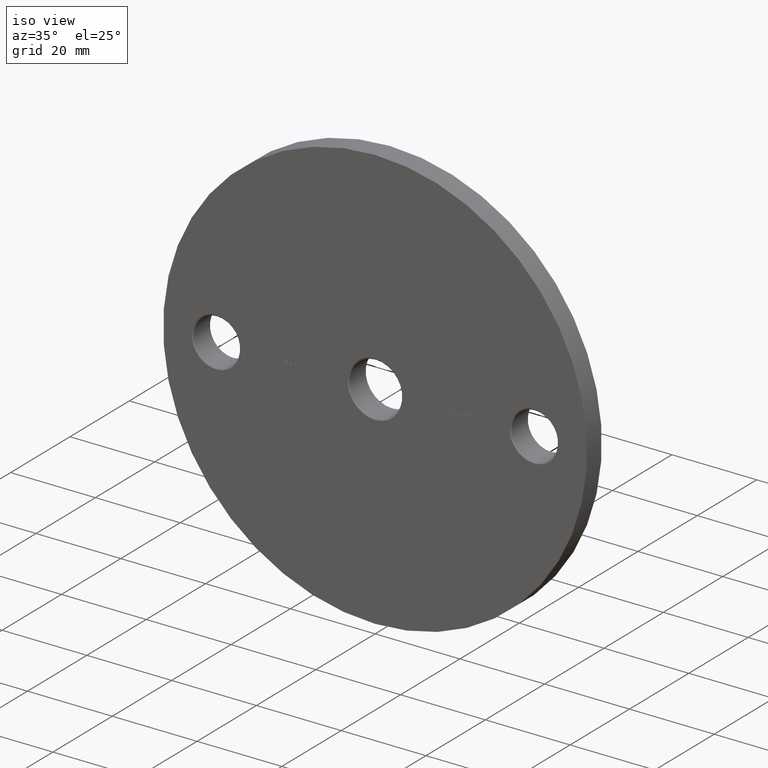
[diagram: clean part render]
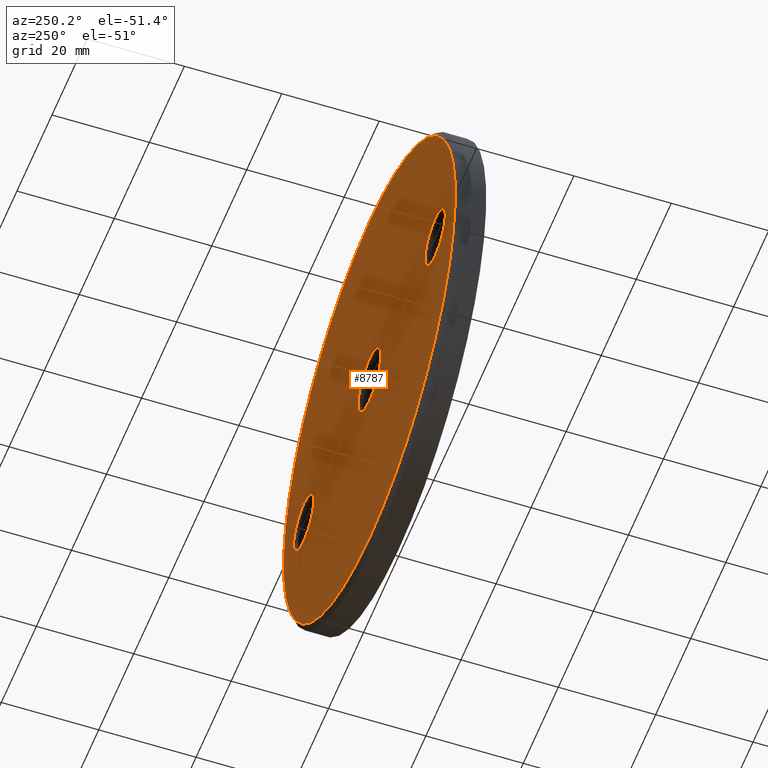
[diagram: tour spotlight — one face highlighted and labeled with its STEP entity id]
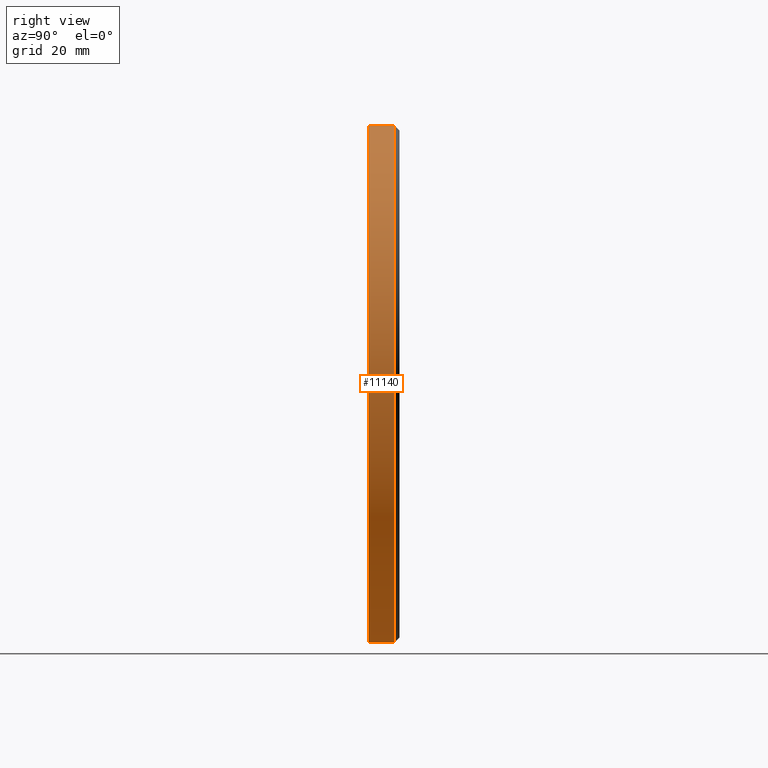
[diagram: tour spotlight — one face highlighted and labeled with its STEP entity id]
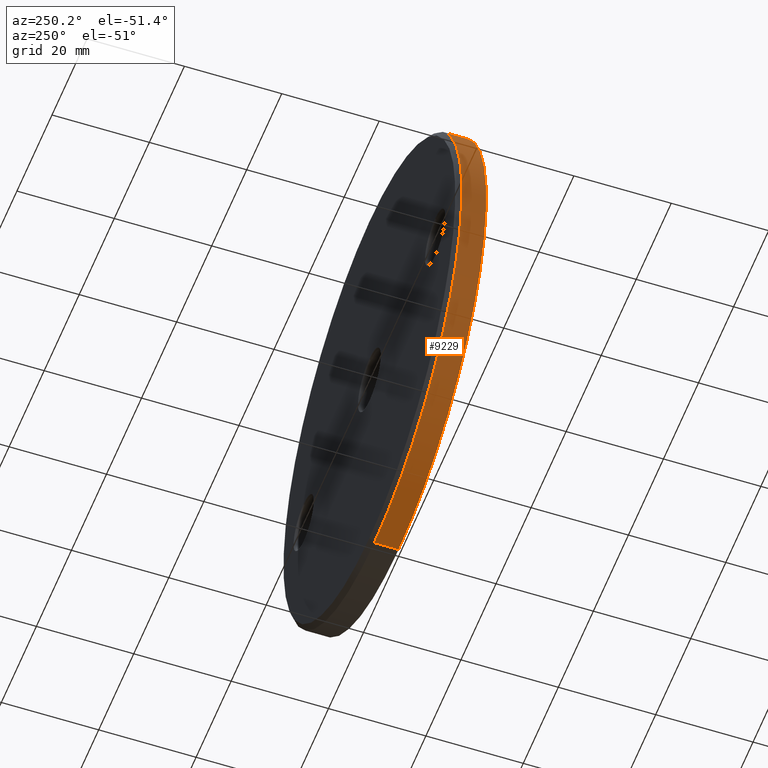
[diagram: tour spotlight — one face highlighted and labeled with its STEP entity id]
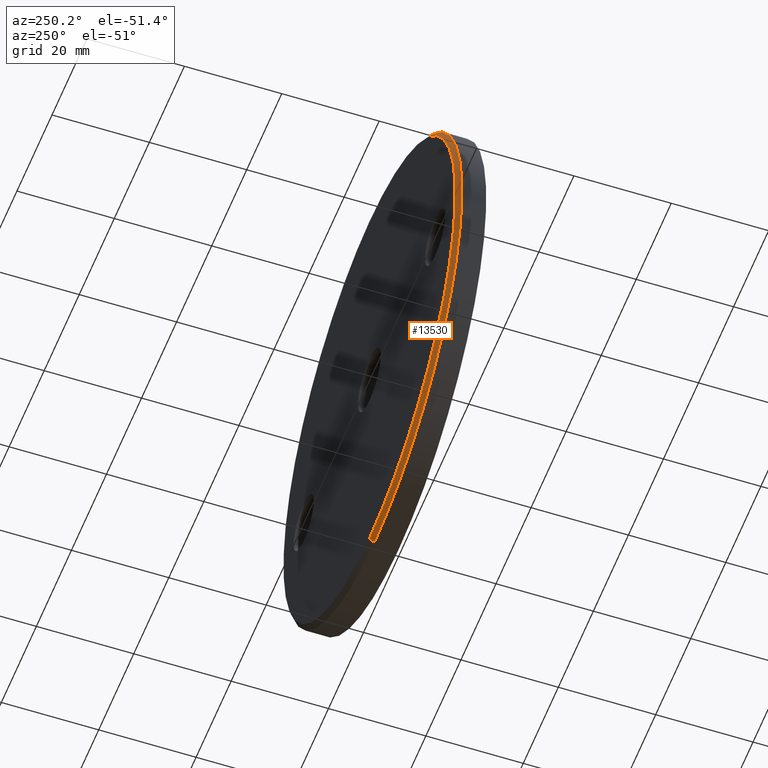
[diagram: tour spotlight — one face highlighted and labeled with its STEP entity id]
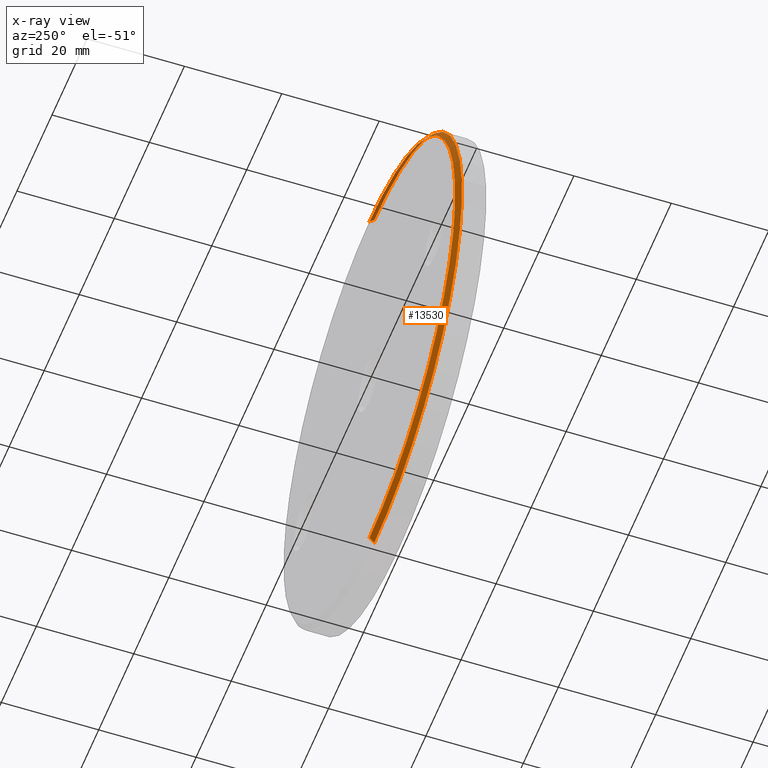
[diagram: x-ray of the same camera — body ghosted, this tour face saturated]
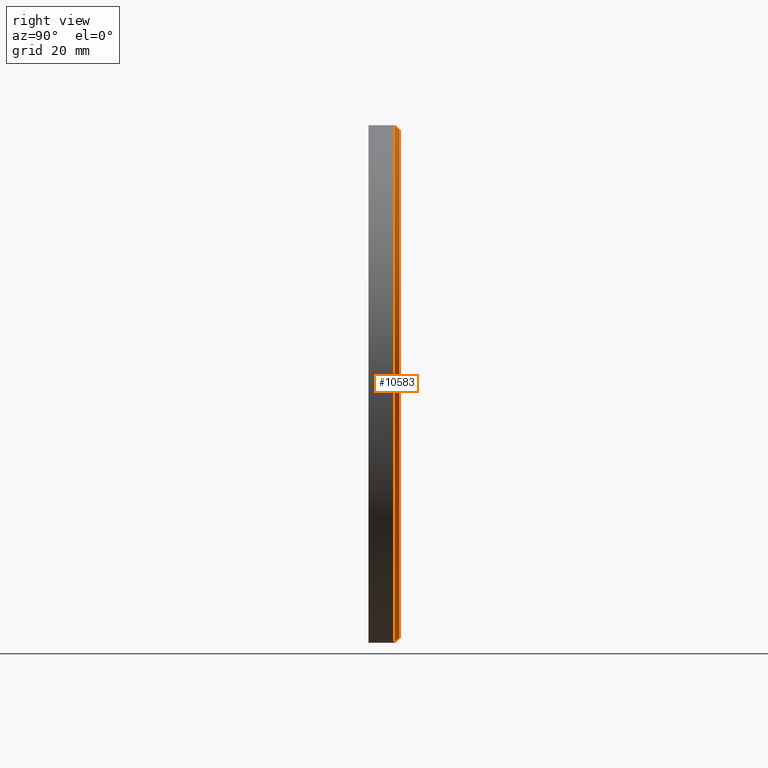
[diagram: tour spotlight — one face highlighted and labeled with its STEP entity id]
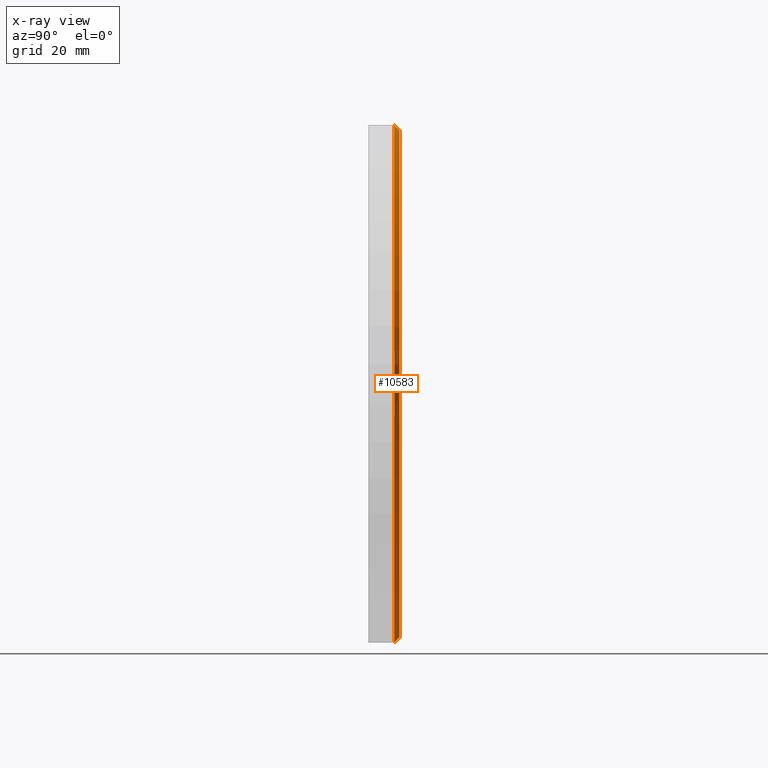
[diagram: x-ray of the same camera — body ghosted, this tour face saturated]
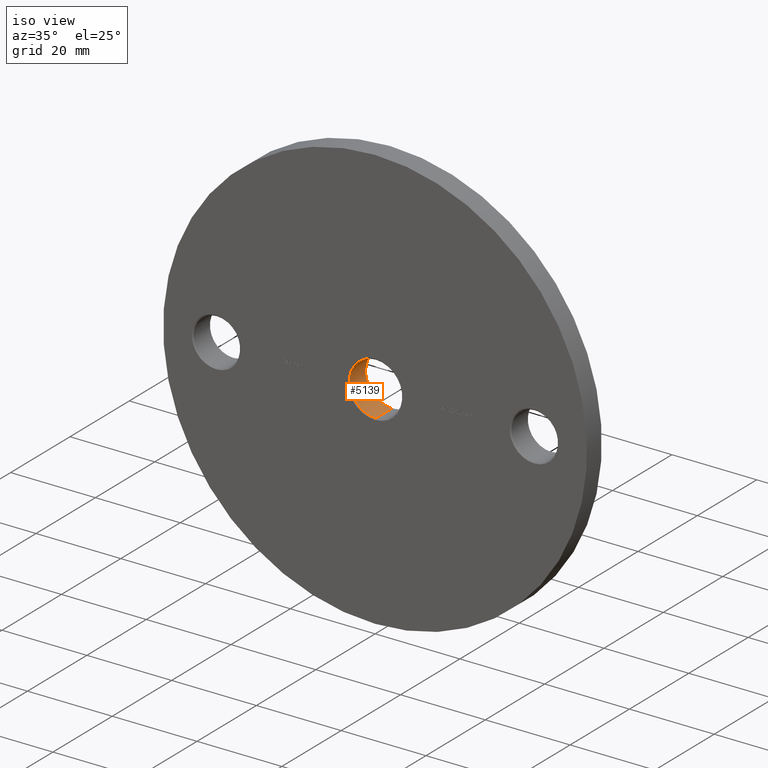
[diagram: tour spotlight — one face highlighted and labeled with its STEP entity id]
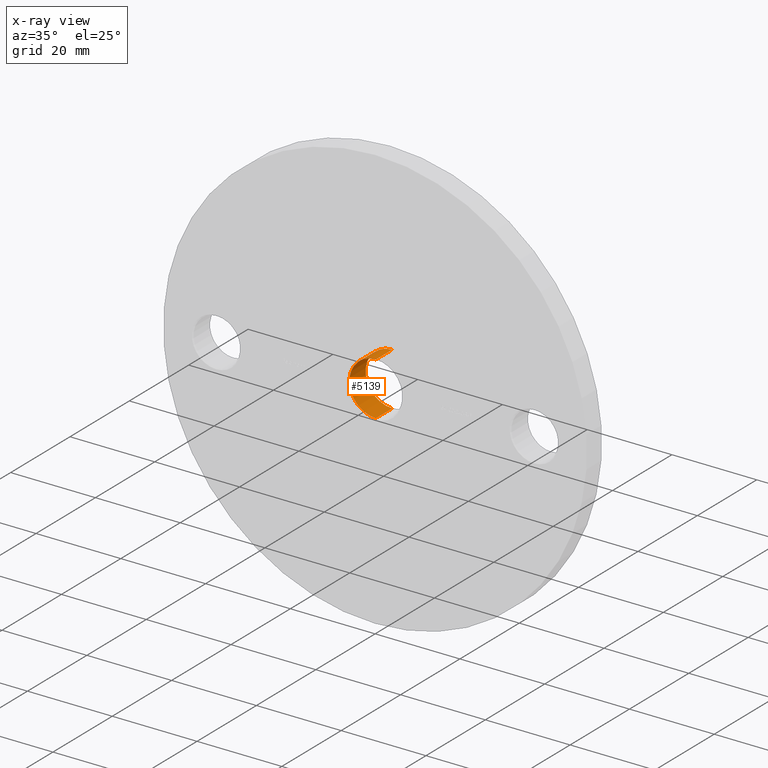
[diagram: x-ray of the same camera — body ghosted, this tour face saturated]
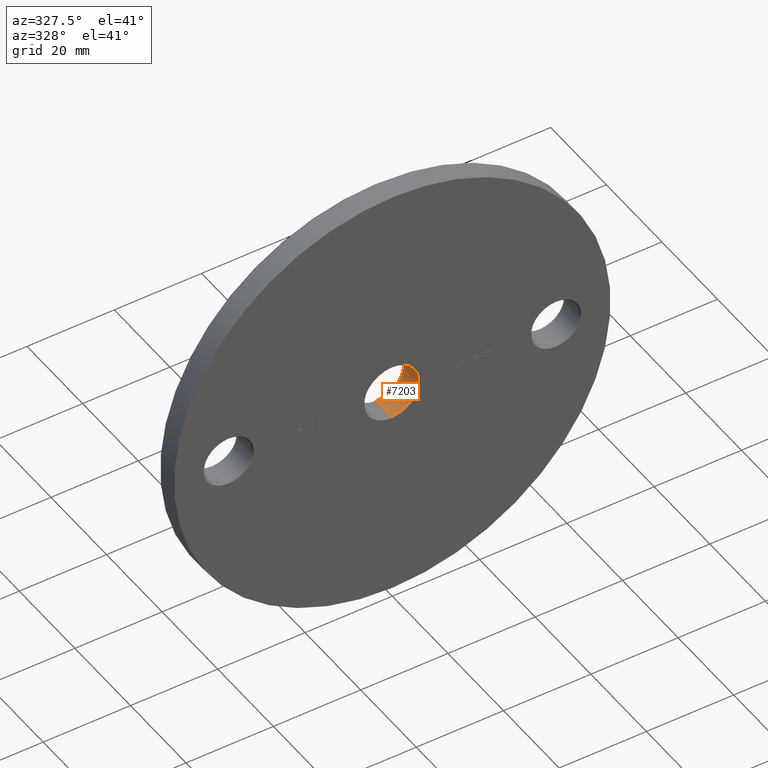
[diagram: tour spotlight — one face highlighted and labeled with its STEP entity id]
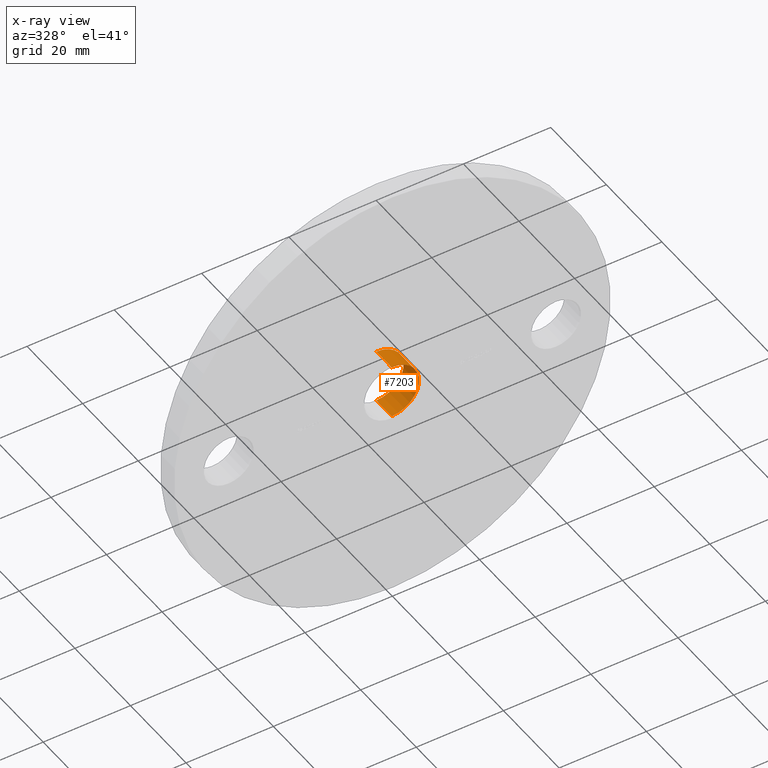
[diagram: x-ray of the same camera — body ghosted, this tour face saturated]
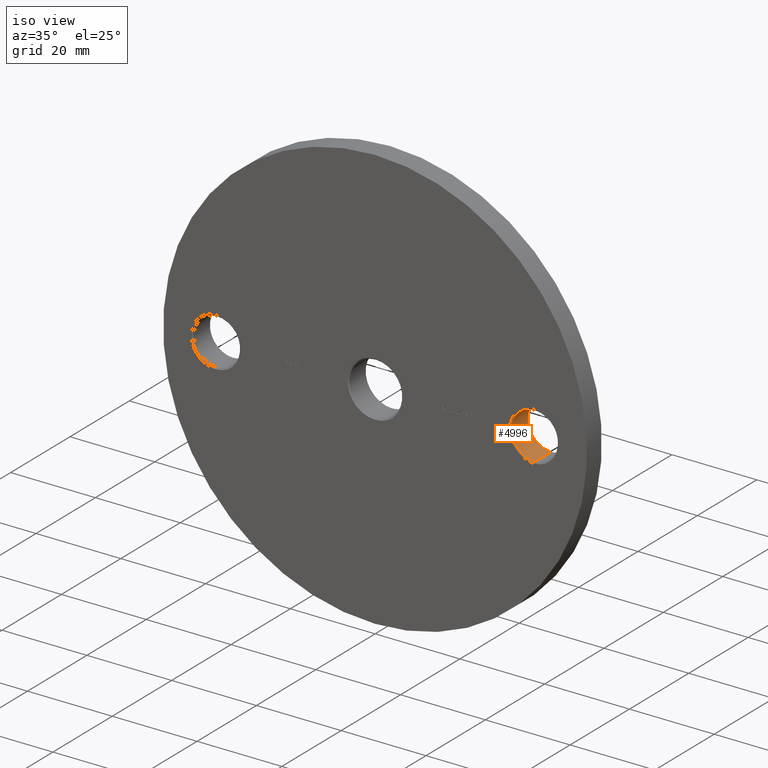
[diagram: tour spotlight — one face highlighted and labeled with its STEP entity id]
A machine part: a face-by-face anatomy tour. The part has 279 B-rep faces; the first image is the clean iso view, then the 8 largest visible faces are spotlighted one at a time (largest first), each with its STEP entity span.

Face 1 — auxiliary view, entity #8787. In plain terms, the highlighted planar face has unit normal (0, 1, 0).
Definition (entity closure, byte-faithful):
#220 = CARTESIAN_POINT ( 'NONE',  ( 0.000000000000000000, 6.000000000000000000, 0.000000000000000000 ) ) ;
#357 = DIRECTION ( 'NONE',  ( 0.000000000000000000, 0.000000000000000000, 1.000000000000000000 ) ) ;
#483 = ORIENTED_EDGE ( 'NONE', *, *, #8444, .T. ) ;
#810 = FACE_BOUND ( 'NONE', #10752, .T. ) ;
#815 = VERTEX_POINT ( 'NONE', #5537 ) ;
#968 = DIRECTION ( 'NONE',  ( -0.000000000000000000, -1.000000000000000000, -0.000000000000000000 ) ) ;
#1272 = ORIENTED_EDGE ( 'NONE', *, *, #5697, .T. ) ;
#1326 = VERTEX_POINT ( 'NONE', #10110 ) ;
#1535 = AXIS2_PLACEMENT_3D ( 'NONE', #2444, #4711, #357 ) ;
#1577 = CARTESIAN_POINT ( 'NONE',  ( 0.000000000000000000, 6.000000000000000000, -49.00000000000002132 ) ) ;
#2024 = CARTESIAN_POINT ( 'NONE',  ( 37.50000000000000000, 6.000000000000000000, -9.184850993605148733E-15 ) ) ;
#2061 = DIRECTION ( 'NONE',  ( 0.000000000000000000, 0.000000000000000000, 1.000000000000000000 ) ) ;
#2141 = CARTESIAN_POINT ( 'NONE',  ( -37.50000000000000000, 6.000000000000000000, 5.750000000000018652 ) ) ;
#2170 = EDGE_CURVE ( 'NONE', #2639, #13078, #12684, .T. ) ;
#2192 = ORIENTED_EDGE ( 'NONE', *, *, #2170, .T. ) ;
#2444 = CARTESIAN_POINT ( 'NONE',  ( 37.50000000000000000, 6.000000000000000000, -9.184850993605148733E-15 ) ) ;
#2445 = DIRECTION ( 'NONE',  ( -0.000000000000000000, -1.000000000000000000, -0.000000000000000000 ) ) ;
#2526 = ORIENTED_EDGE ( 'NONE', *, *, #9350, .T. ) ;
#2639 = VERTEX_POINT ( 'NONE', #5425 ) ;
#3507 = CIRCLE ( 'NONE', #6688, 49.00000000000002132 ) ;
#3653 = AXIS2_PLACEMENT_3D ( 'NONE', #11088, #9849, #13285 ) ;
#3829 = CARTESIAN_POINT ( 'NONE',  ( 37.50000000000000000, 6.000000000000000000, 5.750000000000009770 ) ) ;
#4367 = CARTESIAN_POINT ( 'NONE',  ( 0.000000000000000000, 6.000000000000000000, 0.000000000000000000 ) ) ;
#4574 = DIRECTION ( 'NONE',  ( 0.000000000000000000, 1.000000000000000000, 0.000000000000000000 ) ) ;
#4681 = AXIS2_PLACEMENT_3D ( 'NONE', #13376, #13520, #6814 ) ;
#4711 = DIRECTION ( 'NONE',  ( -0.000000000000000000, -1.000000000000000000, -0.000000000000000000 ) ) ;
#5324 = CIRCLE ( 'NONE', #6576, 5.750000000000018652 ) ;
#5391 = DIRECTION ( 'NONE',  ( 0.000000000000000000, 0.000000000000000000, 1.000000000000000000 ) ) ;
#5425 = CARTESIAN_POINT ( 'NONE',  ( 37.50000000000000000, 6.000000000000000000, -5.750000000000028422 ) ) ;
#5464 = DIRECTION ( 'NONE',  ( -0.000000000000000000, -1.000000000000000000, -0.000000000000000000 ) ) ;
#5537 = CARTESIAN_POINT ( 'NONE',  ( 0.000000000000000000, 6.000000000000000000, 6.500000000000019540 ) ) ;
#5661 = CARTESIAN_POINT ( 'NONE',  ( 0.000000000000000000, 6.000000000000000000, 0.000000000000000000 ) ) ;
#5697 = EDGE_CURVE ( 'NONE', #8298, #9185, #5324, .T. ) ;
#5731 = ORIENTED_EDGE ( 'NONE', *, *, #12938, .T. ) ;
#5757 = ORIENTED_EDGE ( 'NONE', *, *, #11318, .T. ) ;
#5864 = PLANE ( 'NONE',  #4681 ) ;
#6576 = AXIS2_PLACEMENT_3D ( 'NONE', #10014, #8782, #8931 ) ;
#6639 = DIRECTION ( 'NONE',  ( 0.000000000000000000, 0.000000000000000000, 1.000000000000000000 ) ) ;
#6688 = AXIS2_PLACEMENT_3D ( 'NONE', #4367, #4574, #8900 ) ;
#6810 = DIRECTION ( 'NONE',  ( 0.000000000000000000, 0.000000000000000000, 1.000000000000000000 ) ) ;
#6814 = DIRECTION ( 'NONE',  ( 0.000000000000000000, -0.000000000000000000, 1.000000000000000000 ) ) ;
#6879 = AXIS2_PLACEMENT_3D ( 'NONE', #220, #2445, #6810 ) ;
#7058 = AXIS2_PLACEMENT_3D ( 'NONE', #2024, #9649, #5391 ) ;
#8037 = EDGE_LOOP ( 'NONE', ( #2526, #483 ) ) ;
#8171 = FACE_BOUND ( 'NONE', #8037, .T. ) ;
#8298 = VERTEX_POINT ( 'NONE', #2141 ) ;
#8444 = EDGE_CURVE ( 'NONE', #11776, #815, #10214, .T. ) ;
#8525 = ORIENTED_EDGE ( 'NONE', *, *, #10091, .T. ) ;
#8573 = EDGE_LOOP ( 'NONE', ( #8525, #5757 ) ) ;
#8723 = CIRCLE ( 'NONE', #10712, 5.750000000000018652 ) ;
#8782 = DIRECTION ( 'NONE',  ( -0.000000000000000000, -1.000000000000000000, -0.000000000000000000 ) ) ;
#8787 = ADVANCED_FACE ( 'NONE', ( #11241, #8171, #11396, #810 ), #5864, .T. ) ;
#8900 = DIRECTION ( 'NONE',  ( 0.000000000000000000, 0.000000000000000000, 1.000000000000000000 ) ) ;
#8931 = DIRECTION ( 'NONE',  ( 0.000000000000000000, 0.000000000000000000, 1.000000000000000000 ) ) ;
#9185 = VERTEX_POINT ( 'NONE', #13824 ) ;
#9350 = EDGE_CURVE ( 'NONE', #815, #11776, #12589, .T. ) ;
#9371 = AXIS2_PLACEMENT_3D ( 'NONE', #5661, #5464, #6639 ) ;
#9649 = DIRECTION ( 'NONE',  ( -0.000000000000000000, -1.000000000000000000, -0.000000000000000000 ) ) ;
#9849 = DIRECTION ( 'NONE',  ( 0.000000000000000000, 1.000000000000000000, 0.000000000000000000 ) ) ;
#10014 = CARTESIAN_POINT ( 'NONE',  ( -37.50000000000000000, 6.000000000000000000, 0.000000000000000000 ) ) ;
#10091 = EDGE_CURVE ( 'NONE', #12118, #1326, #11047, .T. ) ;
#10110 = CARTESIAN_POINT ( 'NONE',  ( 6.062001655779400089E-15, 6.000000000000000000, 49.00000000000002132 ) ) ;
#10166 = CIRCLE ( 'NONE', #7058, 5.750000000000018652 ) ;
#10214 = CIRCLE ( 'NONE', #9371, 6.500000000000019540 ) ;
#10712 = AXIS2_PLACEMENT_3D ( 'NONE', #12060, #968, #2061 ) ;
#10752 = EDGE_LOOP ( 'NONE', ( #1272, #11782 ) ) ;
#11047 = CIRCLE ( 'NONE', #3653, 49.00000000000002132 ) ;
#11088 = CARTESIAN_POINT ( 'NONE',  ( 0.000000000000000000, 6.000000000000000000, 0.000000000000000000 ) ) ;
#11241 = FACE_OUTER_BOUND ( 'NONE', #8573, .T. ) ;
#11318 = EDGE_CURVE ( 'NONE', #1326, #12118, #3507, .T. ) ;
#11396 = FACE_BOUND ( 'NONE', #13884, .T. ) ;
#11503 = CARTESIAN_POINT ( 'NONE',  ( 7.960204194457819143E-16, 6.000000000000000000, -6.500000000000019540 ) ) ;
#11776 = VERTEX_POINT ( 'NONE', #11503 ) ;
#11782 = ORIENTED_EDGE ( 'NONE', *, *, #13944, .T. ) ;
#12060 = CARTESIAN_POINT ( 'NONE',  ( -37.50000000000000000, 6.000000000000000000, 0.000000000000000000 ) ) ;
#12118 = VERTEX_POINT ( 'NONE', #1577 ) ;
#12589 = CIRCLE ( 'NONE', #6879, 6.500000000000019540 ) ;
#12684 = CIRCLE ( 'NONE', #1535, 5.750000000000018652 ) ;
#12938 = EDGE_CURVE ( 'NONE', #13078, #2639, #10166, .T. ) ;
#13078 = VERTEX_POINT ( 'NONE', #3829 ) ;
#13285 = DIRECTION ( 'NONE',  ( 0.000000000000000000, 0.000000000000000000, 1.000000000000000000 ) ) ;
#13376 = CARTESIAN_POINT ( 'NONE',  ( 0.000000000000000000, 6.000000000000000000, 0.000000000000000000 ) ) ;
#13520 = DIRECTION ( 'NONE',  ( 0.000000000000000000, 1.000000000000000000, 0.000000000000000000 ) ) ;
#13824 = CARTESIAN_POINT ( 'NONE',  ( -37.50000000000000000, 6.000000000000000000, -5.750000000000018652 ) ) ;
#13884 = EDGE_LOOP ( 'NONE', ( #5731, #2192 ) ) ;
#13944 = EDGE_CURVE ( 'NONE', #9185, #8298, #8723, .T. ) ;

Face 2 — right view, entity #11140. In plain terms, the highlighted cylindrical surface (partial cylindrical patch) has radius 50 mm, axis along (-0, -1, -0).
Definition (entity closure, byte-faithful):
#259 = EDGE_CURVE ( 'NONE', #9828, #12475, #7421, .T. ) ;
#657 = CIRCLE ( 'NONE', #2825, 50.00000000000000000 ) ;
#961 = AXIS2_PLACEMENT_3D ( 'NONE', #3868, #1572, #3922 ) ;
#1047 = CARTESIAN_POINT ( 'NONE',  ( 0.000000000000000000, 6.000000000000000000, 0.000000000000000000 ) ) ;
#1533 = DIRECTION ( 'NONE',  ( -0.000000000000000000, -1.000000000000000000, -0.000000000000000000 ) ) ;
#1572 = DIRECTION ( 'NONE',  ( 0.000000000000000000, 1.000000000000000000, 0.000000000000000000 ) ) ;
#2685 = VERTEX_POINT ( 'NONE', #10055 ) ;
#2825 = AXIS2_PLACEMENT_3D ( 'NONE', #4531, #5651, #9950 ) ;
#3242 = EDGE_CURVE ( 'NONE', #9058, #9828, #3253, .T. ) ;
#3253 = LINE ( 'NONE', #6049, #10810 ) ;
#3392 = DIRECTION ( 'NONE',  ( 0.000000000000000000, 0.000000000000000000, -1.000000000000000000 ) ) ;
#3439 = DIRECTION ( 'NONE',  ( -0.000000000000000000, -1.000000000000000000, -0.000000000000000000 ) ) ;
#3868 = CARTESIAN_POINT ( 'NONE',  ( 0.000000000000000000, 0.000000000000000000, 0.000000000000000000 ) ) ;
#3922 = DIRECTION ( 'NONE',  ( 0.000000000000000000, 0.000000000000000000, 1.000000000000000000 ) ) ;
#3970 = EDGE_LOOP ( 'NONE', ( #6467, #4161, #10278, #6673 ) ) ;
#4161 = ORIENTED_EDGE ( 'NONE', *, *, #3242, .T. ) ;
#4531 = CARTESIAN_POINT ( 'NONE',  ( 0.000000000000000000, 4.999999999999999112, 0.000000000000000000 ) ) ;
#5056 = DIRECTION ( 'NONE',  ( -0.000000000000000000, -1.000000000000000000, -0.000000000000000000 ) ) ;
#5651 = DIRECTION ( 'NONE',  ( 0.000000000000000000, -1.000000000000000000, 0.000000000000000000 ) ) ;
#5875 = CARTESIAN_POINT ( 'NONE',  ( 6.123233995736766085E-15, 4.999999999999999112, 50.00000000000000000 ) ) ;
#6049 = CARTESIAN_POINT ( 'NONE',  ( 6.123233995736766085E-15, 6.000000000000000000, 50.00000000000000000 ) ) ;
#6467 = ORIENTED_EDGE ( 'NONE', *, *, #10378, .T. ) ;
#6498 = AXIS2_PLACEMENT_3D ( 'NONE', #1047, #3439, #3392 ) ;
#6673 = ORIENTED_EDGE ( 'NONE', *, *, #13189, .F. ) ;
#6891 = CARTESIAN_POINT ( 'NONE',  ( 0.000000000000000000, 6.000000000000000000, -50.00000000000000000 ) ) ;
#7421 = CIRCLE ( 'NONE', #961, 50.00000000000000000 ) ;
#7698 = VECTOR ( 'NONE', #1533, 1000.000000000000000 ) ;
#9058 = VERTEX_POINT ( 'NONE', #5875 ) ;
#9828 = VERTEX_POINT ( 'NONE', #14043 ) ;
#9950 = DIRECTION ( 'NONE',  ( 0.000000000000000000, 0.000000000000000000, 1.000000000000000000 ) ) ;
#10055 = CARTESIAN_POINT ( 'NONE',  ( 0.000000000000000000, 4.999999999999999112, -50.00000000000000000 ) ) ;
#10278 = ORIENTED_EDGE ( 'NONE', *, *, #259, .T. ) ;
#10366 = CARTESIAN_POINT ( 'NONE',  ( 0.000000000000000000, 0.000000000000000000, -50.00000000000000000 ) ) ;
#10378 = EDGE_CURVE ( 'NONE', #2685, #9058, #657, .T. ) ;
#10705 = FACE_OUTER_BOUND ( 'NONE', #3970, .T. ) ;
#10810 = VECTOR ( 'NONE', #5056, 1000.000000000000000 ) ;
#11140 = ADVANCED_FACE ( 'NONE', ( #10705 ), #13274, .T. ) ;
#12475 = VERTEX_POINT ( 'NONE', #10366 ) ;
#13189 = EDGE_CURVE ( 'NONE', #2685, #12475, #13621, .T. ) ;
#13274 = CYLINDRICAL_SURFACE ( 'NONE', #6498, 50.00000000000000000 ) ;
#13621 = LINE ( 'NONE', #6891, #7698 ) ;
#14043 = CARTESIAN_POINT ( 'NONE',  ( 6.123233995736766085E-15, 0.000000000000000000, 50.00000000000000000 ) ) ;

Face 3 — auxiliary view, entity #9229. In plain terms, the highlighted cylindrical surface (partial cylindrical patch) has radius 50 mm, axis along (-0, -1, -0).
Definition (entity closure, byte-faithful):
#38 = AXIS2_PLACEMENT_3D ( 'NONE', #9548, #2947, #10635 ) ;
#839 = AXIS2_PLACEMENT_3D ( 'NONE', #1971, #4172, #11752 ) ;
#963 = ORIENTED_EDGE ( 'NONE', *, *, #2122, .T. ) ;
#1533 = DIRECTION ( 'NONE',  ( -0.000000000000000000, -1.000000000000000000, -0.000000000000000000 ) ) ;
#1971 = CARTESIAN_POINT ( 'NONE',  ( 0.000000000000000000, 6.000000000000000000, 0.000000000000000000 ) ) ;
#2122 = EDGE_CURVE ( 'NONE', #12475, #9828, #11155, .T. ) ;
#2685 = VERTEX_POINT ( 'NONE', #10055 ) ;
#2947 = DIRECTION ( 'NONE',  ( 0.000000000000000000, -1.000000000000000000, 0.000000000000000000 ) ) ;
#3242 = EDGE_CURVE ( 'NONE', #9058, #9828, #3253, .T. ) ;
#3253 = LINE ( 'NONE', #6049, #10810 ) ;
#3426 = ORIENTED_EDGE ( 'NONE', *, *, #13189, .T. ) ;
#3710 = ORIENTED_EDGE ( 'NONE', *, *, #3242, .F. ) ;
#4172 = DIRECTION ( 'NONE',  ( -0.000000000000000000, -1.000000000000000000, -0.000000000000000000 ) ) ;
#4425 = DIRECTION ( 'NONE',  ( 0.000000000000000000, 1.000000000000000000, 0.000000000000000000 ) ) ;
#5056 = DIRECTION ( 'NONE',  ( -0.000000000000000000, -1.000000000000000000, -0.000000000000000000 ) ) ;
#5686 = CARTESIAN_POINT ( 'NONE',  ( 0.000000000000000000, 0.000000000000000000, 0.000000000000000000 ) ) ;
#5875 = CARTESIAN_POINT ( 'NONE',  ( 6.123233995736766085E-15, 4.999999999999999112, 50.00000000000000000 ) ) ;
#6049 = CARTESIAN_POINT ( 'NONE',  ( 6.123233995736766085E-15, 6.000000000000000000, 50.00000000000000000 ) ) ;
#6212 = AXIS2_PLACEMENT_3D ( 'NONE', #5686, #4425, #13324 ) ;
#6891 = CARTESIAN_POINT ( 'NONE',  ( 0.000000000000000000, 6.000000000000000000, -50.00000000000000000 ) ) ;
#7698 = VECTOR ( 'NONE', #1533, 1000.000000000000000 ) ;
#9058 = VERTEX_POINT ( 'NONE', #5875 ) ;
#9229 = ADVANCED_FACE ( 'NONE', ( #11582 ), #10717, .T. ) ;
#9548 = CARTESIAN_POINT ( 'NONE',  ( 0.000000000000000000, 4.999999999999999112, 0.000000000000000000 ) ) ;
#9828 = VERTEX_POINT ( 'NONE', #14043 ) ;
#10055 = CARTESIAN_POINT ( 'NONE',  ( 0.000000000000000000, 4.999999999999999112, -50.00000000000000000 ) ) ;
#10283 = ORIENTED_EDGE ( 'NONE', *, *, #13064, .T. ) ;
#10366 = CARTESIAN_POINT ( 'NONE',  ( 0.000000000000000000, 0.000000000000000000, -50.00000000000000000 ) ) ;
#10635 = DIRECTION ( 'NONE',  ( 0.000000000000000000, 0.000000000000000000, 1.000000000000000000 ) ) ;
#10717 = CYLINDRICAL_SURFACE ( 'NONE', #839, 50.00000000000000000 ) ;
#10810 = VECTOR ( 'NONE', #5056, 1000.000000000000000 ) ;
#11155 = CIRCLE ( 'NONE', #6212, 50.00000000000000000 ) ;
#11582 = FACE_OUTER_BOUND ( 'NONE', #12298, .T. ) ;
#11752 = DIRECTION ( 'NONE',  ( 0.000000000000000000, 0.000000000000000000, -1.000000000000000000 ) ) ;
#11931 = CIRCLE ( 'NONE', #38, 50.00000000000000000 ) ;
#12298 = EDGE_LOOP ( 'NONE', ( #3710, #10283, #3426, #963 ) ) ;
#12475 = VERTEX_POINT ( 'NONE', #10366 ) ;
#13064 = EDGE_CURVE ( 'NONE', #9058, #2685, #11931, .T. ) ;
#13189 = EDGE_CURVE ( 'NONE', #2685, #12475, #13621, .T. ) ;
#13324 = DIRECTION ( 'NONE',  ( 0.000000000000000000, 0.000000000000000000, 1.000000000000000000 ) ) ;
#13621 = LINE ( 'NONE', #6891, #7698 ) ;
#14043 = CARTESIAN_POINT ( 'NONE',  ( 6.123233995736766085E-15, 0.000000000000000000, 50.00000000000000000 ) ) ;

Face 4 — auxiliary view, entity #13530. An x-ray twin of the same camera follows (body ghosted, this face saturated) — the face is partly hidden behind the body. In plain terms, the highlighted conical surface has half-angle 45 deg.
Definition (entity closure, byte-faithful):
#38 = AXIS2_PLACEMENT_3D ( 'NONE', #9548, #2947, #10635 ) ;
#913 = AXIS2_PLACEMENT_3D ( 'NONE', #10809, #12047, #4499 ) ;
#1300 = ORIENTED_EDGE ( 'NONE', *, *, #10091, .F. ) ;
#1326 = VERTEX_POINT ( 'NONE', #10110 ) ;
#1360 = FACE_OUTER_BOUND ( 'NONE', #3824, .T. ) ;
#1425 = ORIENTED_EDGE ( 'NONE', *, *, #6025, .F. ) ;
#1528 = CONICAL_SURFACE ( 'NONE', #913, 49.00000000000002132, 0.7853981633974378429 ) ;
#1577 = CARTESIAN_POINT ( 'NONE',  ( 0.000000000000000000, 6.000000000000000000, -49.00000000000002132 ) ) ;
#1885 = EDGE_CURVE ( 'NONE', #12118, #2685, #12188, .T. ) ;
#1909 = VECTOR ( 'NONE', #13535, 1000.000000000000000 ) ;
#2558 = CARTESIAN_POINT ( 'NONE',  ( 0.000000000000000000, 6.000000000000000000, -49.00000000000002132 ) ) ;
#2685 = VERTEX_POINT ( 'NONE', #10055 ) ;
#2947 = DIRECTION ( 'NONE',  ( 0.000000000000000000, -1.000000000000000000, 0.000000000000000000 ) ) ;
#3653 = AXIS2_PLACEMENT_3D ( 'NONE', #11088, #9849, #13285 ) ;
#3660 = DIRECTION ( 'NONE',  ( 8.659560562354844111E-17, -0.7071067811865549002, 0.7071067811865401342 ) ) ;
#3824 = EDGE_LOOP ( 'NONE', ( #1425, #1300, #9835, #4103 ) ) ;
#4103 = ORIENTED_EDGE ( 'NONE', *, *, #13064, .F. ) ;
#4499 = DIRECTION ( 'NONE',  ( 0.000000000000000000, 0.000000000000000000, -1.000000000000000000 ) ) ;
#5875 = CARTESIAN_POINT ( 'NONE',  ( 6.123233995736766085E-15, 4.999999999999999112, 50.00000000000000000 ) ) ;
#6025 = EDGE_CURVE ( 'NONE', #1326, #9058, #7887, .T. ) ;
#7887 = LINE ( 'NONE', #12342, #8229 ) ;
#8229 = VECTOR ( 'NONE', #3660, 1000.000000000000000 ) ;
#9058 = VERTEX_POINT ( 'NONE', #5875 ) ;
#9548 = CARTESIAN_POINT ( 'NONE',  ( 0.000000000000000000, 4.999999999999999112, 0.000000000000000000 ) ) ;
#9835 = ORIENTED_EDGE ( 'NONE', *, *, #1885, .T. ) ;
#9849 = DIRECTION ( 'NONE',  ( 0.000000000000000000, 1.000000000000000000, 0.000000000000000000 ) ) ;
#10055 = CARTESIAN_POINT ( 'NONE',  ( 0.000000000000000000, 4.999999999999999112, -50.00000000000000000 ) ) ;
#10091 = EDGE_CURVE ( 'NONE', #12118, #1326, #11047, .T. ) ;
#10110 = CARTESIAN_POINT ( 'NONE',  ( 6.062001655779400089E-15, 6.000000000000000000, 49.00000000000002132 ) ) ;
#10635 = DIRECTION ( 'NONE',  ( 0.000000000000000000, 0.000000000000000000, 1.000000000000000000 ) ) ;
#10809 = CARTESIAN_POINT ( 'NONE',  ( 0.000000000000000000, 6.000000000000000000, 0.000000000000000000 ) ) ;
#11047 = CIRCLE ( 'NONE', #3653, 49.00000000000002132 ) ;
#11088 = CARTESIAN_POINT ( 'NONE',  ( 0.000000000000000000, 6.000000000000000000, 0.000000000000000000 ) ) ;
#11931 = CIRCLE ( 'NONE', #38, 50.00000000000000000 ) ;
#12047 = DIRECTION ( 'NONE',  ( 0.000000000000000000, -1.000000000000000000, 0.000000000000000000 ) ) ;
#12118 = VERTEX_POINT ( 'NONE', #1577 ) ;
#12188 = LINE ( 'NONE', #2558, #1909 ) ;
#12342 = CARTESIAN_POINT ( 'NONE',  ( 6.000769315822033304E-15, 6.000000000000000000, 49.00000000000002132 ) ) ;
#13064 = EDGE_CURVE ( 'NONE', #9058, #2685, #11931, .T. ) ;
#13285 = DIRECTION ( 'NONE',  ( 0.000000000000000000, 0.000000000000000000, 1.000000000000000000 ) ) ;
#13530 = ADVANCED_FACE ( 'NONE', ( #1360 ), #1528, .T. ) ;
#13535 = DIRECTION ( 'NONE',  ( 0.000000000000000000, -0.7071067811865549002, -0.7071067811865401342 ) ) ;

Face 5 — right view, entity #10583. An x-ray twin of the same camera follows (body ghosted, this face saturated) — the face is partly hidden behind the body. In plain terms, the highlighted conical surface has half-angle 45 deg.
Definition (entity closure, byte-faithful):
#330 = CONICAL_SURFACE ( 'NONE', #2003, 49.00000000000002132, 0.7853981633974378429 ) ;
#657 = CIRCLE ( 'NONE', #2825, 50.00000000000000000 ) ;
#1326 = VERTEX_POINT ( 'NONE', #10110 ) ;
#1577 = CARTESIAN_POINT ( 'NONE',  ( 0.000000000000000000, 6.000000000000000000, -49.00000000000002132 ) ) ;
#1885 = EDGE_CURVE ( 'NONE', #12118, #2685, #12188, .T. ) ;
#1909 = VECTOR ( 'NONE', #13535, 1000.000000000000000 ) ;
#2003 = AXIS2_PLACEMENT_3D ( 'NONE', #5106, #6014, #13667 ) ;
#2558 = CARTESIAN_POINT ( 'NONE',  ( 0.000000000000000000, 6.000000000000000000, -49.00000000000002132 ) ) ;
#2685 = VERTEX_POINT ( 'NONE', #10055 ) ;
#2825 = AXIS2_PLACEMENT_3D ( 'NONE', #4531, #5651, #9950 ) ;
#2873 = ORIENTED_EDGE ( 'NONE', *, *, #11318, .F. ) ;
#3507 = CIRCLE ( 'NONE', #6688, 49.00000000000002132 ) ;
#3660 = DIRECTION ( 'NONE',  ( 8.659560562354844111E-17, -0.7071067811865549002, 0.7071067811865401342 ) ) ;
#4367 = CARTESIAN_POINT ( 'NONE',  ( 0.000000000000000000, 6.000000000000000000, 0.000000000000000000 ) ) ;
#4531 = CARTESIAN_POINT ( 'NONE',  ( 0.000000000000000000, 4.999999999999999112, 0.000000000000000000 ) ) ;
#4574 = DIRECTION ( 'NONE',  ( 0.000000000000000000, 1.000000000000000000, 0.000000000000000000 ) ) ;
#4738 = EDGE_LOOP ( 'NONE', ( #2873, #8663, #11862, #8706 ) ) ;
#5106 = CARTESIAN_POINT ( 'NONE',  ( 0.000000000000000000, 6.000000000000000000, 0.000000000000000000 ) ) ;
#5651 = DIRECTION ( 'NONE',  ( 0.000000000000000000, -1.000000000000000000, 0.000000000000000000 ) ) ;
#5875 = CARTESIAN_POINT ( 'NONE',  ( 6.123233995736766085E-15, 4.999999999999999112, 50.00000000000000000 ) ) ;
#6014 = DIRECTION ( 'NONE',  ( 0.000000000000000000, -1.000000000000000000, 0.000000000000000000 ) ) ;
#6025 = EDGE_CURVE ( 'NONE', #1326, #9058, #7887, .T. ) ;
#6688 = AXIS2_PLACEMENT_3D ( 'NONE', #4367, #4574, #8900 ) ;
#7887 = LINE ( 'NONE', #12342, #8229 ) ;
#8229 = VECTOR ( 'NONE', #3660, 1000.000000000000000 ) ;
#8341 = FACE_OUTER_BOUND ( 'NONE', #4738, .T. ) ;
#8663 = ORIENTED_EDGE ( 'NONE', *, *, #6025, .T. ) ;
#8706 = ORIENTED_EDGE ( 'NONE', *, *, #1885, .F. ) ;
#8900 = DIRECTION ( 'NONE',  ( 0.000000000000000000, 0.000000000000000000, 1.000000000000000000 ) ) ;
#9058 = VERTEX_POINT ( 'NONE', #5875 ) ;
#9950 = DIRECTION ( 'NONE',  ( 0.000000000000000000, 0.000000000000000000, 1.000000000000000000 ) ) ;
#10055 = CARTESIAN_POINT ( 'NONE',  ( 0.000000000000000000, 4.999999999999999112, -50.00000000000000000 ) ) ;
#10110 = CARTESIAN_POINT ( 'NONE',  ( 6.062001655779400089E-15, 6.000000000000000000, 49.00000000000002132 ) ) ;
#10378 = EDGE_CURVE ( 'NONE', #2685, #9058, #657, .T. ) ;
#10583 = ADVANCED_FACE ( 'NONE', ( #8341 ), #330, .T. ) ;
#11318 = EDGE_CURVE ( 'NONE', #1326, #12118, #3507, .T. ) ;
#11862 = ORIENTED_EDGE ( 'NONE', *, *, #10378, .F. ) ;
#12118 = VERTEX_POINT ( 'NONE', #1577 ) ;
#12188 = LINE ( 'NONE', #2558, #1909 ) ;
#12342 = CARTESIAN_POINT ( 'NONE',  ( 6.000769315822033304E-15, 6.000000000000000000, 49.00000000000002132 ) ) ;
#13535 = DIRECTION ( 'NONE',  ( 0.000000000000000000, -0.7071067811865549002, -0.7071067811865401342 ) ) ;
#13667 = DIRECTION ( 'NONE',  ( 0.000000000000000000, 0.000000000000000000, -1.000000000000000000 ) ) ;

Face 6 — iso view, entity #5139. An x-ray twin of the same camera follows (body ghosted, this face saturated) — the face is partly hidden behind the body. In plain terms, the highlighted cylindrical surface (edge-blend (fillet) strip) has radius 6.25 mm, axis along (-0, 1, -0).
Definition (entity closure, byte-faithful):
#333 = CARTESIAN_POINT ( 'NONE',  ( 7.654042494670957606E-16, 0.000000000000000000, -6.250000000000000000 ) ) ;
#410 = AXIS2_PLACEMENT_3D ( 'NONE', #3746, #9171, #11397 ) ;
#700 = CIRCLE ( 'NONE', #10539, 6.250000000000000000 ) ;
#950 = VECTOR ( 'NONE', #7963, 1000.000000000000000 ) ;
#1582 = EDGE_CURVE ( 'NONE', #13120, #12284, #9799, .T. ) ;
#1706 = CARTESIAN_POINT ( 'NONE',  ( 7.654042494670957606E-16, 5.749999999999973355, -6.250000000000000000 ) ) ;
#1718 = DIRECTION ( 'NONE',  ( -0.000000000000000000, 1.000000000000000000, -0.000000000000000000 ) ) ;
#2178 = ORIENTED_EDGE ( 'NONE', *, *, #13417, .T. ) ;
#2567 = CYLINDRICAL_SURFACE ( 'NONE', #11257, 6.250000000000000000 ) ;
#3746 = CARTESIAN_POINT ( 'NONE',  ( 0.000000000000000000, 5.749999999999973355, 0.000000000000000000 ) ) ;
#3838 = CIRCLE ( 'NONE', #410, 6.250000000000000000 ) ;
#4372 = DIRECTION ( 'NONE',  ( -0.000000000000000000, -1.000000000000000000, -0.000000000000000000 ) ) ;
#5139 = ADVANCED_FACE ( 'NONE', ( #5842 ), #2567, .F. ) ;
#5527 = VECTOR ( 'NONE', #7460, 1000.000000000000000 ) ;
#5842 = FACE_OUTER_BOUND ( 'NONE', #12459, .T. ) ;
#7293 = VERTEX_POINT ( 'NONE', #1706 ) ;
#7460 = DIRECTION ( 'NONE',  ( -0.000000000000000000, 1.000000000000000000, -0.000000000000000000 ) ) ;
#7963 = DIRECTION ( 'NONE',  ( -0.000000000000000000, 1.000000000000000000, -0.000000000000000000 ) ) ;
#8492 = LINE ( 'NONE', #333, #950 ) ;
#8572 = CARTESIAN_POINT ( 'NONE',  ( 0.000000000000000000, 5.749999999999973355, 6.250000000000000000 ) ) ;
#8583 = CARTESIAN_POINT ( 'NONE',  ( 0.000000000000000000, 0.2500000000000253686, 6.250000000000000000 ) ) ;
#9171 = DIRECTION ( 'NONE',  ( 0.000000000000000000, 1.000000000000000000, 0.000000000000000000 ) ) ;
#9412 = ORIENTED_EDGE ( 'NONE', *, *, #1582, .F. ) ;
#9713 = CARTESIAN_POINT ( 'NONE',  ( 0.000000000000000000, 0.000000000000000000, 6.250000000000000000 ) ) ;
#9786 = CARTESIAN_POINT ( 'NONE',  ( 7.654042494670957606E-16, 0.2500000000000253686, -6.250000000000000000 ) ) ;
#9799 = LINE ( 'NONE', #9713, #5527 ) ;
#10539 = AXIS2_PLACEMENT_3D ( 'NONE', #10939, #4372, #14143 ) ;
#10696 = VERTEX_POINT ( 'NONE', #9786 ) ;
#10939 = CARTESIAN_POINT ( 'NONE',  ( 0.000000000000000000, 0.2500000000000253686, 0.000000000000000000 ) ) ;
#11257 = AXIS2_PLACEMENT_3D ( 'NONE', #12703, #1718, #11571 ) ;
#11295 = EDGE_CURVE ( 'NONE', #10696, #7293, #8492, .T. ) ;
#11397 = DIRECTION ( 'NONE',  ( 0.000000000000000000, 0.000000000000000000, 1.000000000000000000 ) ) ;
#11571 = DIRECTION ( 'NONE',  ( 0.000000000000000000, 0.000000000000000000, 1.000000000000000000 ) ) ;
#11722 = EDGE_CURVE ( 'NONE', #7293, #12284, #3838, .T. ) ;
#12284 = VERTEX_POINT ( 'NONE', #8572 ) ;
#12459 = EDGE_LOOP ( 'NONE', ( #2178, #13675, #14046, #9412 ) ) ;
#12703 = CARTESIAN_POINT ( 'NONE',  ( 0.000000000000000000, 0.000000000000000000, 0.000000000000000000 ) ) ;
#13120 = VERTEX_POINT ( 'NONE', #8583 ) ;
#13417 = EDGE_CURVE ( 'NONE', #13120, #10696, #700, .T. ) ;
#13675 = ORIENTED_EDGE ( 'NONE', *, *, #11295, .T. ) ;
#14046 = ORIENTED_EDGE ( 'NONE', *, *, #11722, .T. ) ;
#14143 = DIRECTION ( 'NONE',  ( 0.000000000000000000, 0.000000000000000000, 1.000000000000000000 ) ) ;

Face 7 — auxiliary view, entity #7203. An x-ray twin of the same camera follows (body ghosted, this face saturated) — the face is partly hidden behind the body. In plain terms, the highlighted cylindrical surface (edge-blend (fillet) strip) has radius 6.25 mm, axis along (-0, 1, -0).
Definition (entity closure, byte-faithful):
#333 = CARTESIAN_POINT ( 'NONE',  ( 7.654042494670957606E-16, 0.000000000000000000, -6.250000000000000000 ) ) ;
#446 = FACE_OUTER_BOUND ( 'NONE', #9425, .T. ) ;
#655 = CIRCLE ( 'NONE', #7426, 6.250000000000000000 ) ;
#671 = ORIENTED_EDGE ( 'NONE', *, *, #11295, .F. ) ;
#950 = VECTOR ( 'NONE', #7963, 1000.000000000000000 ) ;
#1582 = EDGE_CURVE ( 'NONE', #13120, #12284, #9799, .T. ) ;
#1706 = CARTESIAN_POINT ( 'NONE',  ( 7.654042494670957606E-16, 5.749999999999973355, -6.250000000000000000 ) ) ;
#1783 = EDGE_CURVE ( 'NONE', #10696, #13120, #2247, .T. ) ;
#2247 = CIRCLE ( 'NONE', #10682, 6.250000000000000000 ) ;
#2376 = DIRECTION ( 'NONE',  ( -0.000000000000000000, -1.000000000000000000, -0.000000000000000000 ) ) ;
#2421 = CARTESIAN_POINT ( 'NONE',  ( 0.000000000000000000, 0.2500000000000253686, 0.000000000000000000 ) ) ;
#3183 = ORIENTED_EDGE ( 'NONE', *, *, #1783, .T. ) ;
#3796 = DIRECTION ( 'NONE',  ( -0.000000000000000000, 1.000000000000000000, -0.000000000000000000 ) ) ;
#4810 = CYLINDRICAL_SURFACE ( 'NONE', #5513, 6.250000000000000000 ) ;
#4927 = ORIENTED_EDGE ( 'NONE', *, *, #9325, .T. ) ;
#5513 = AXIS2_PLACEMENT_3D ( 'NONE', #9284, #3796, #13768 ) ;
#5527 = VECTOR ( 'NONE', #7460, 1000.000000000000000 ) ;
#7203 = ADVANCED_FACE ( 'NONE', ( #446 ), #4810, .F. ) ;
#7293 = VERTEX_POINT ( 'NONE', #1706 ) ;
#7426 = AXIS2_PLACEMENT_3D ( 'NONE', #13375, #12132, #7837 ) ;
#7460 = DIRECTION ( 'NONE',  ( -0.000000000000000000, 1.000000000000000000, -0.000000000000000000 ) ) ;
#7837 = DIRECTION ( 'NONE',  ( 0.000000000000000000, 0.000000000000000000, 1.000000000000000000 ) ) ;
#7963 = DIRECTION ( 'NONE',  ( -0.000000000000000000, 1.000000000000000000, -0.000000000000000000 ) ) ;
#8328 = ORIENTED_EDGE ( 'NONE', *, *, #1582, .T. ) ;
#8492 = LINE ( 'NONE', #333, #950 ) ;
#8572 = CARTESIAN_POINT ( 'NONE',  ( 0.000000000000000000, 5.749999999999973355, 6.250000000000000000 ) ) ;
#8583 = CARTESIAN_POINT ( 'NONE',  ( 0.000000000000000000, 0.2500000000000253686, 6.250000000000000000 ) ) ;
#9284 = CARTESIAN_POINT ( 'NONE',  ( 0.000000000000000000, 0.000000000000000000, 0.000000000000000000 ) ) ;
#9325 = EDGE_CURVE ( 'NONE', #12284, #7293, #655, .T. ) ;
#9425 = EDGE_LOOP ( 'NONE', ( #671, #3183, #8328, #4927 ) ) ;
#9713 = CARTESIAN_POINT ( 'NONE',  ( 0.000000000000000000, 0.000000000000000000, 6.250000000000000000 ) ) ;
#9786 = CARTESIAN_POINT ( 'NONE',  ( 7.654042494670957606E-16, 0.2500000000000253686, -6.250000000000000000 ) ) ;
#9799 = LINE ( 'NONE', #9713, #5527 ) ;
#10682 = AXIS2_PLACEMENT_3D ( 'NONE', #2421, #2376, #12286 ) ;
#10696 = VERTEX_POINT ( 'NONE', #9786 ) ;
#11295 = EDGE_CURVE ( 'NONE', #10696, #7293, #8492, .T. ) ;
#12132 = DIRECTION ( 'NONE',  ( 0.000000000000000000, 1.000000000000000000, 0.000000000000000000 ) ) ;
#12284 = VERTEX_POINT ( 'NONE', #8572 ) ;
#12286 = DIRECTION ( 'NONE',  ( 0.000000000000000000, 0.000000000000000000, 1.000000000000000000 ) ) ;
#13120 = VERTEX_POINT ( 'NONE', #8583 ) ;
#13375 = CARTESIAN_POINT ( 'NONE',  ( 0.000000000000000000, 5.749999999999973355, 0.000000000000000000 ) ) ;
#13768 = DIRECTION ( 'NONE',  ( 0.000000000000000000, 0.000000000000000000, 1.000000000000000000 ) ) ;

Face 8 — iso view, entity #4996. In plain terms, the highlighted cylindrical surface (edge-blend (fillet) strip) has radius 5.5 mm, axis along (-0, -1, -0).
Definition (entity closure, byte-faithful):
#645 = ORIENTED_EDGE ( 'NONE', *, *, #2934, .T. ) ;
#1011 = CIRCLE ( 'NONE', #12364, 5.499999999999996447 ) ;
#1034 = DIRECTION ( 'NONE',  ( -0.000000000000000000, -1.000000000000000000, -0.000000000000000000 ) ) ;
#1152 = CARTESIAN_POINT ( 'NONE',  ( 37.50000000000000000, 6.000000000000000000, -9.184850993605148733E-15 ) ) ;
#1683 = ORIENTED_EDGE ( 'NONE', *, *, #11683, .T. ) ;
#2752 = LINE ( 'NONE', #9845, #2907 ) ;
#2907 = VECTOR ( 'NONE', #1034, 1000.000000000000000 ) ;
#2934 = EDGE_CURVE ( 'NONE', #9290, #13307, #13371, .T. ) ;
#3305 = CARTESIAN_POINT ( 'NONE',  ( 37.50000000000000000, 5.749999999999985789, -5.500000000000005329 ) ) ;
#3398 = VERTEX_POINT ( 'NONE', #7539 ) ;
#3441 = ORIENTED_EDGE ( 'NONE', *, *, #7076, .F. ) ;
#4073 = EDGE_LOOP ( 'NONE', ( #1683, #645, #13292, #3441 ) ) ;
#4460 = CYLINDRICAL_SURFACE ( 'NONE', #13747, 5.499999999999996447 ) ;
#4687 = DIRECTION ( 'NONE',  ( -0.000000000000000000, -1.000000000000000000, -0.000000000000000000 ) ) ;
#4719 = DIRECTION ( 'NONE',  ( 0.000000000000000000, 1.000000000000000000, 0.000000000000000000 ) ) ;
#4996 = ADVANCED_FACE ( 'NONE', ( #9104 ), #4460, .F. ) ;
#6196 = EDGE_CURVE ( 'NONE', #13307, #3398, #1011, .T. ) ;
#7002 = CARTESIAN_POINT ( 'NONE',  ( 37.50000000000000000, 5.749999999999985789, -9.184850993605148733E-15 ) ) ;
#7076 = EDGE_CURVE ( 'NONE', #7345, #3398, #2752, .T. ) ;
#7316 = DIRECTION ( 'NONE',  ( -0.000000000000000000, -1.000000000000000000, -0.000000000000000000 ) ) ;
#7345 = VERTEX_POINT ( 'NONE', #3305 ) ;
#7539 = CARTESIAN_POINT ( 'NONE',  ( 37.50000000000000000, 0.2500000000000036637, -5.500000000000005329 ) ) ;
#8142 = CIRCLE ( 'NONE', #13092, 5.499999999999996447 ) ;
#9104 = FACE_OUTER_BOUND ( 'NONE', #4073, .T. ) ;
#9290 = VERTEX_POINT ( 'NONE', #10828 ) ;
#9533 = DIRECTION ( 'NONE',  ( 0.000000000000000000, 0.000000000000000000, 1.000000000000000000 ) ) ;
#9705 = DIRECTION ( 'NONE',  ( -0.000000000000000000, -1.000000000000000000, -0.000000000000000000 ) ) ;
#9845 = CARTESIAN_POINT ( 'NONE',  ( 37.50000000000000000, 6.000000000000000000, -5.500000000000005329 ) ) ;
#10299 = CARTESIAN_POINT ( 'NONE',  ( 37.50000000000000000, 0.2500000000000036637, 5.499999999999986677 ) ) ;
#10828 = CARTESIAN_POINT ( 'NONE',  ( 37.50000000000000000, 5.749999999999985789, 5.499999999999986677 ) ) ;
#10975 = VECTOR ( 'NONE', #9705, 1000.000000000000000 ) ;
#11355 = DIRECTION ( 'NONE',  ( 0.000000000000000000, 0.000000000000000000, 1.000000000000000000 ) ) ;
#11676 = CARTESIAN_POINT ( 'NONE',  ( 37.50000000000000000, 0.2500000000000036637, -9.184850993605148733E-15 ) ) ;
#11683 = EDGE_CURVE ( 'NONE', #7345, #9290, #8142, .T. ) ;
#11946 = CARTESIAN_POINT ( 'NONE',  ( 37.50000000000000000, 6.000000000000000000, 5.499999999999986677 ) ) ;
#12364 = AXIS2_PLACEMENT_3D ( 'NONE', #11676, #7316, #9533 ) ;
#12520 = DIRECTION ( 'NONE',  ( 0.000000000000000000, 0.000000000000000000, -1.000000000000000000 ) ) ;
#13092 = AXIS2_PLACEMENT_3D ( 'NONE', #7002, #4719, #11355 ) ;
#13292 = ORIENTED_EDGE ( 'NONE', *, *, #6196, .T. ) ;
#13307 = VERTEX_POINT ( 'NONE', #10299 ) ;
#13371 = LINE ( 'NONE', #11946, #10975 ) ;
#13747 = AXIS2_PLACEMENT_3D ( 'NONE', #1152, #4687, #12520 ) ;